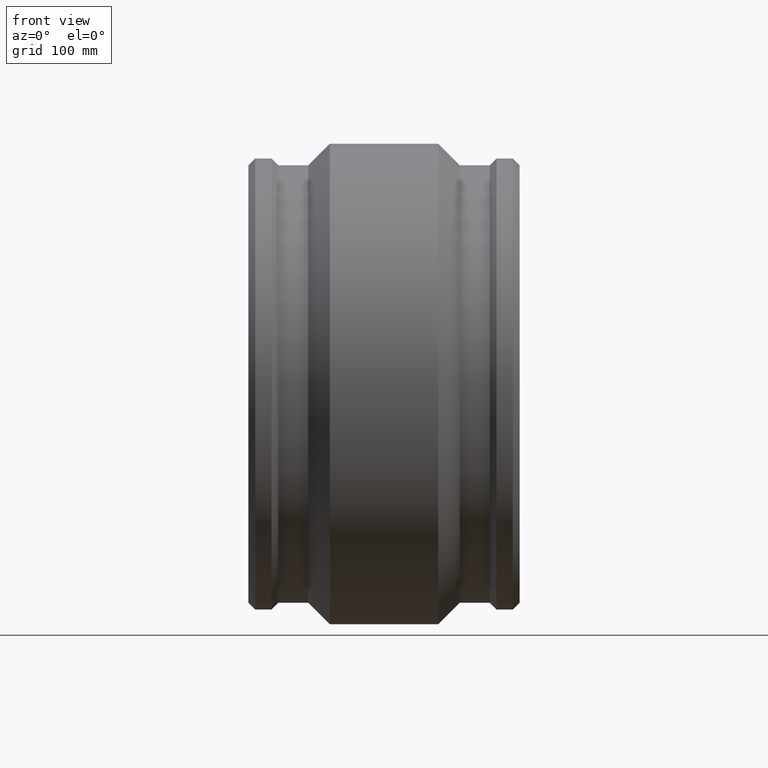
[diagram: clean part render]
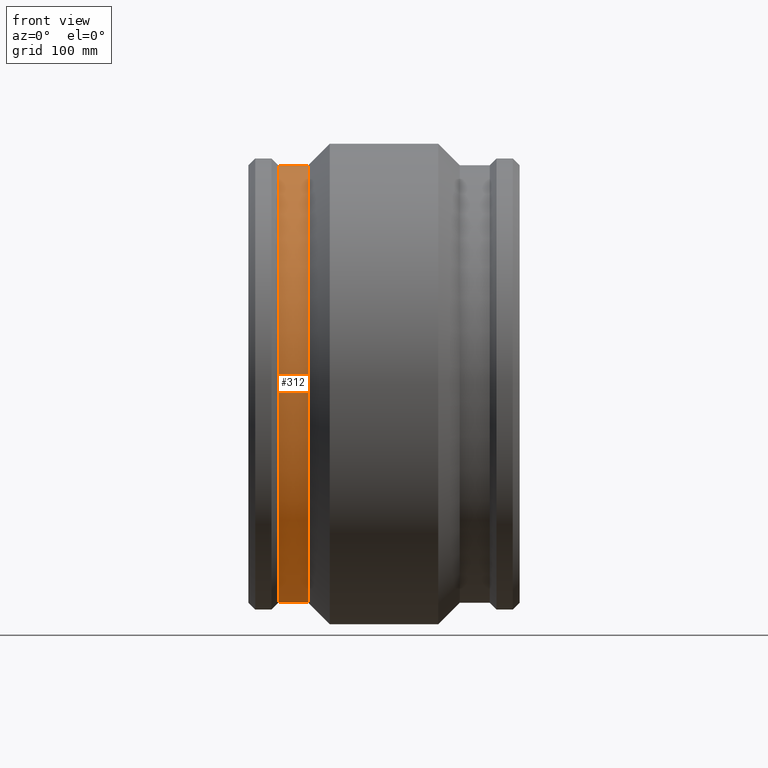
[diagram: same view with one face highlighted and labeled with its STEP entity id]
A machine part, front view. The second image highlights one B-rep face of the part: STEP entity #312.
In plain terms, the highlighted cylindrical surface (bore or boss wall) has radius 274.51 mm, axis along (1, 0, 0).
Its self-contained STEP definition (entity closure, byte-faithful):
#40=FACE_BOUND('',#126,.T.);
#59=CYLINDRICAL_SURFACE('',#361,274.51);
#82=FACE_OUTER_BOUND('',#125,.T.);
#125=EDGE_LOOP('',(#267));
#126=EDGE_LOOP('',(#268));
#161=CIRCLE('',#360,274.51);
#162=CIRCLE('',#362,274.51);
#187=VERTEX_POINT('',#617);
#188=VERTEX_POINT('',#620);
#217=EDGE_CURVE('',#187,#187,#161,.T.);
#218=EDGE_CURVE('',#188,#188,#162,.T.);
#267=ORIENTED_EDGE('',*,*,#217,.T.);
#268=ORIENTED_EDGE('',*,*,#218,.F.);
#312=ADVANCED_FACE('',(#82,#40),#59,.T.);
#360=AXIS2_PLACEMENT_3D('',#618,#453,#454);
#361=AXIS2_PLACEMENT_3D('',#619,#455,#456);
#362=AXIS2_PLACEMENT_3D('',#621,#457,#458);
#453=DIRECTION('center_axis',(1.,1.83697019872103E-16,0.));
#454=DIRECTION('ref_axis',(0.,0.,-1.));
#455=DIRECTION('center_axis',(1.,1.83697019872103E-16,0.));
#456=DIRECTION('ref_axis',(-1.77635683940025E-16,1.,0.));
#457=DIRECTION('center_axis',(1.,1.83697019872103E-16,0.));
#458=DIRECTION('ref_axis',(0.,0.,-1.));
#617=CARTESIAN_POINT('',(-132.6,274.51,0.));
#618=CARTESIAN_POINT('Origin',(-132.6,6.87026854321667E-15,0.));
#619=CARTESIAN_POINT('Origin',(-113.795,1.03246910019116E-14,0.));
#620=CARTESIAN_POINT('',(-94.9900000000001,274.51,0.));
#621=CARTESIAN_POINT('Origin',(-94.99,1.37791134606064E-14,0.));